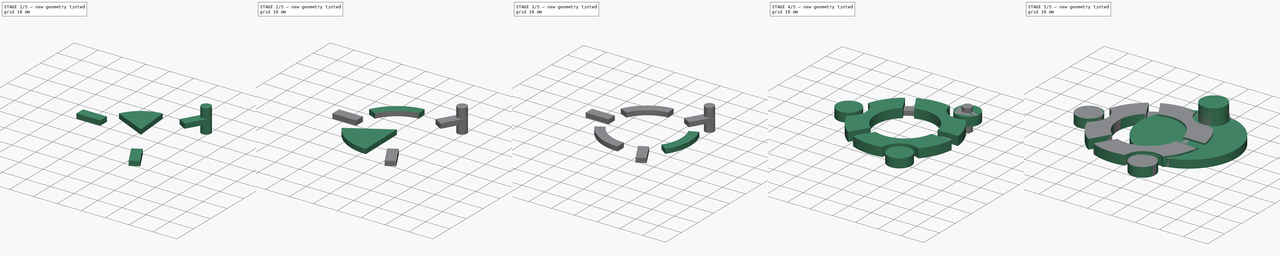
[diagram: build sequence overview — one tinted view per stage of 5, left to right]
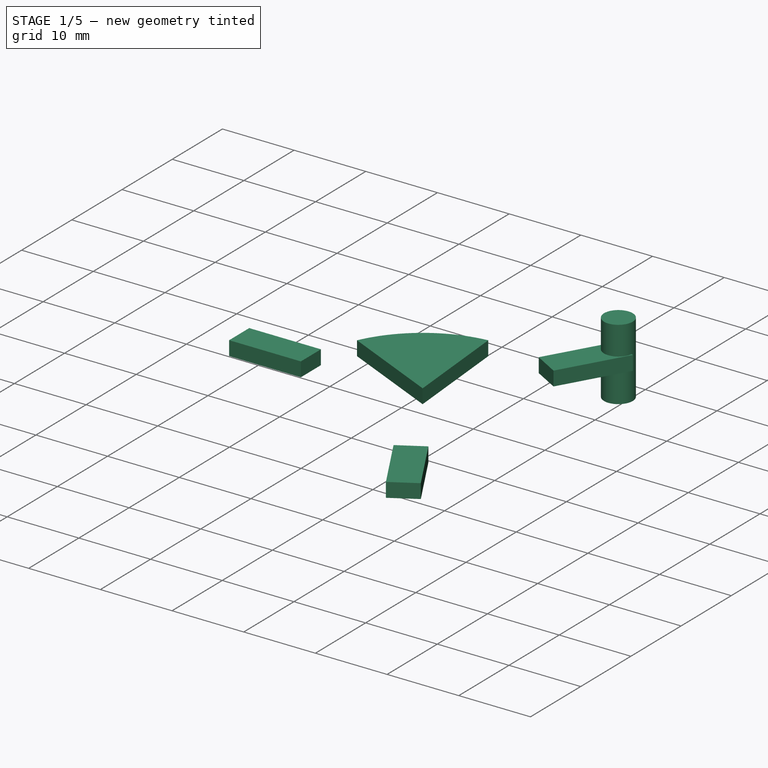
[diagram: stage 1 of 5 — iso view after this stage's code; geometry added in this stage tinted green]
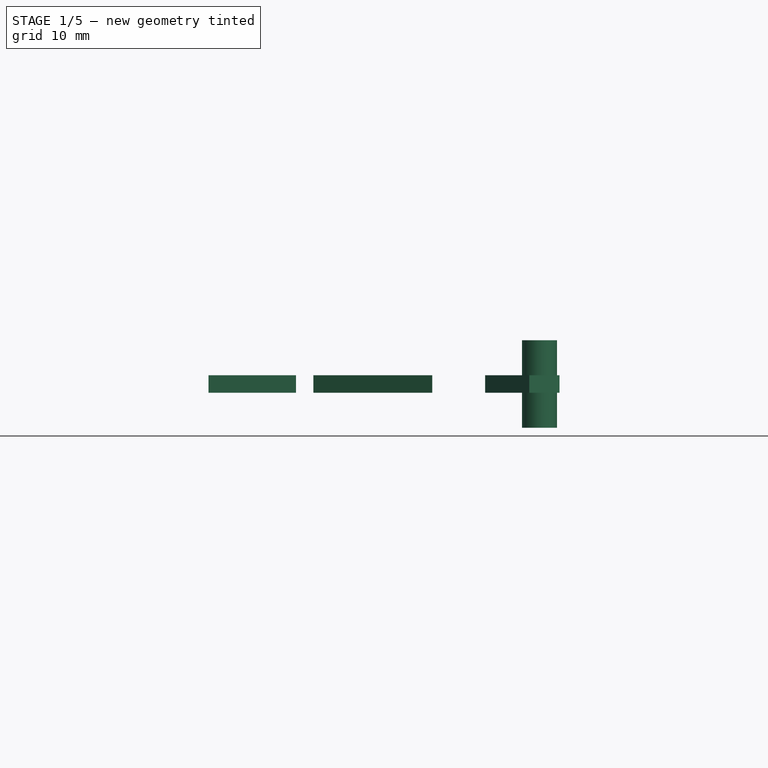
[diagram: stage 1 of 5 — front view after this stage's code; geometry added in this stage tinted green]
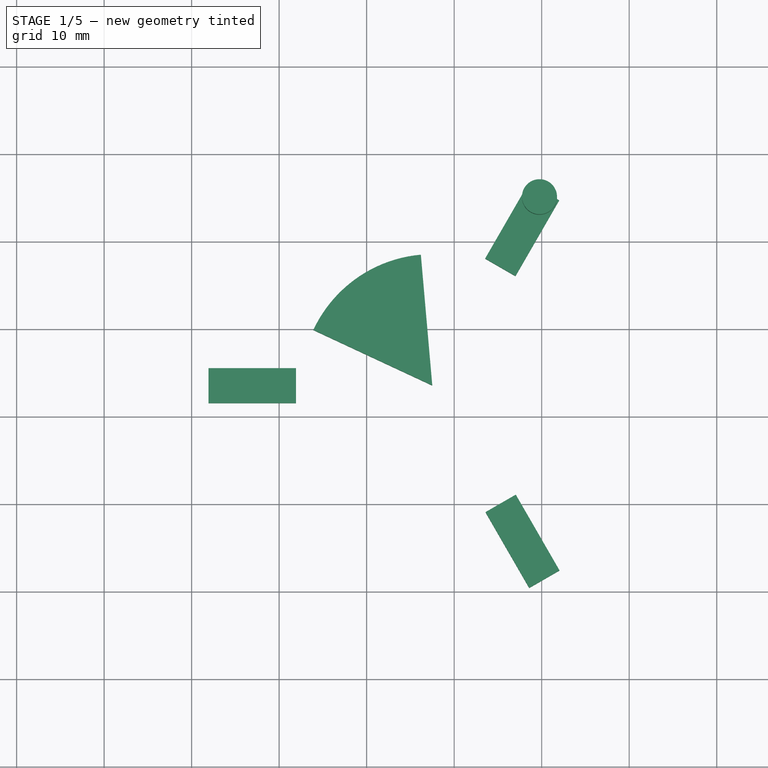
[diagram: stage 1 of 5 — top view after this stage's code; geometry added in this stage tinted green]
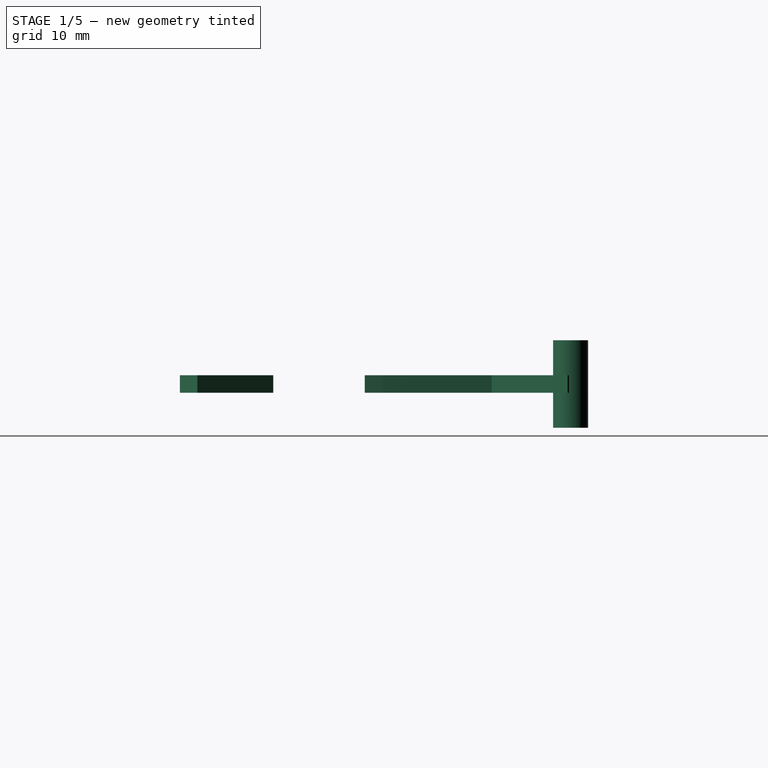
[diagram: stage 1 of 5 — right view after this stage's code; geometry added in this stage tinted green]
FCSTD DOCUMENT  (FreeCAD 0.14R3702 (Git))
Label: ubuntu
License: CreativeCommons Attribution-ShareAlike
LicenseURL: http://creativecommons.org/licenses/by-sa/4.0/
objects: Part::Cylinder×9, Part::Cut×4, Part::MultiFuse×3, Sketcher::SketchObject×2, App::DocumentObjectGroup×2, Part::Feature×2, Part::FeaturePython×2, PartDesign::Pocket×1, Part::Part2DObjectPython×1, PartDesign::Pad×1, Part::Box×1
note: 28 computed .brp shape members not serialized (recipe doc carries the construction recipe); baked Part::Feature solids carry a one-line shape summary decoded from their .brp

FEATURE [Part::Cylinder] Cylinder007  label="Cilindro006"
  Angle = 60
  Height = 2
  Placement = pos=(-12.5,-6.5,0) rot=(0,0,1;1.65806rad)
  Radius = 15
FEATURE [Part::Box] Box  label="Cubo"
  Height = 2
  Length = 10
  Placement = pos=(-3,6,0) rot=(0,0,1;1.0472rad)
  Width = 4
FEATURE [Part::FeaturePython] Array001  # Draft array (typed FeaturePython)
  Angle = 360
  ArrayType = 1
  Axis = (0,0,1)
  Base = -> Box
  Center = (-12.5,-6.5,0)
  IntervalX = (1,0,0)
  IntervalY = (0,1,0)
  IntervalZ = (0,0,1)
  NumberPolar = 3
  NumberX = 2
  NumberY = 2
  NumberZ = 1
FEATURE [Part::Cylinder] Cylinder008  label="Cilindro007"
  Angle = 360
  Height = 10
  Placement = pos=(-0.25,15,-4) rot=(0,0,1;0rad)
  Radius = 2
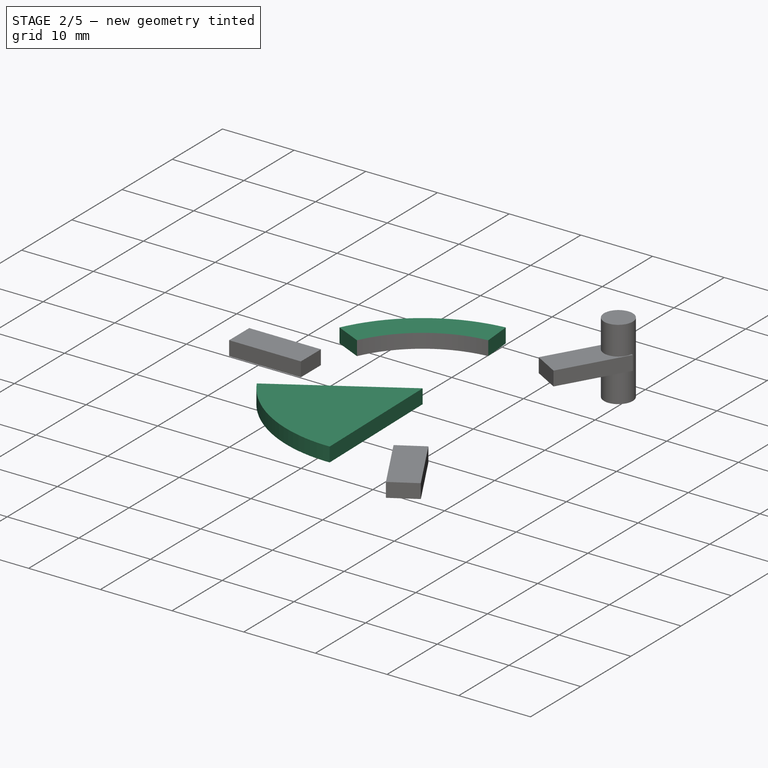
[diagram: stage 2 of 5 — iso view after this stage's code; geometry added in this stage tinted green]
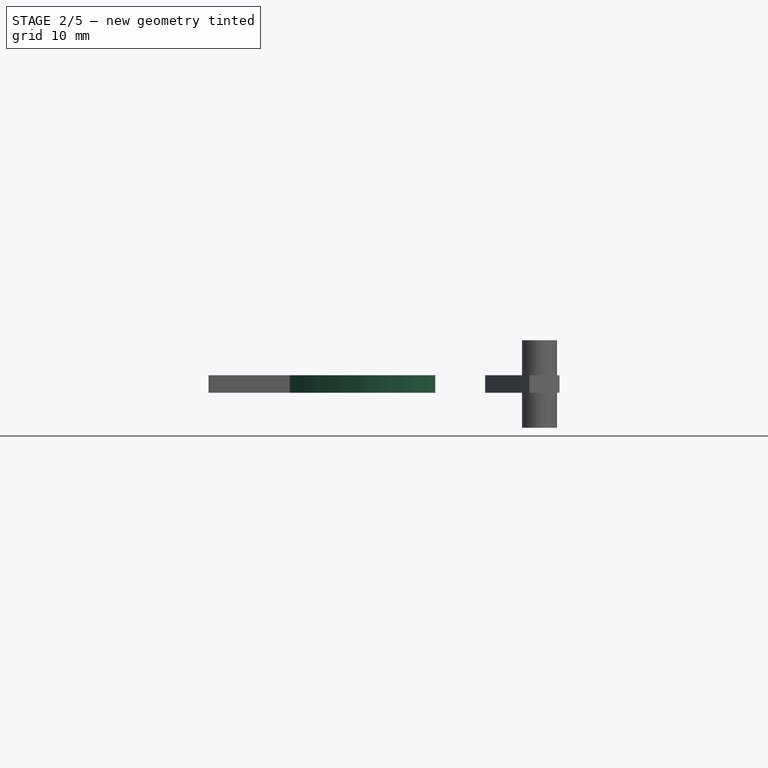
[diagram: stage 2 of 5 — front view after this stage's code; geometry added in this stage tinted green]
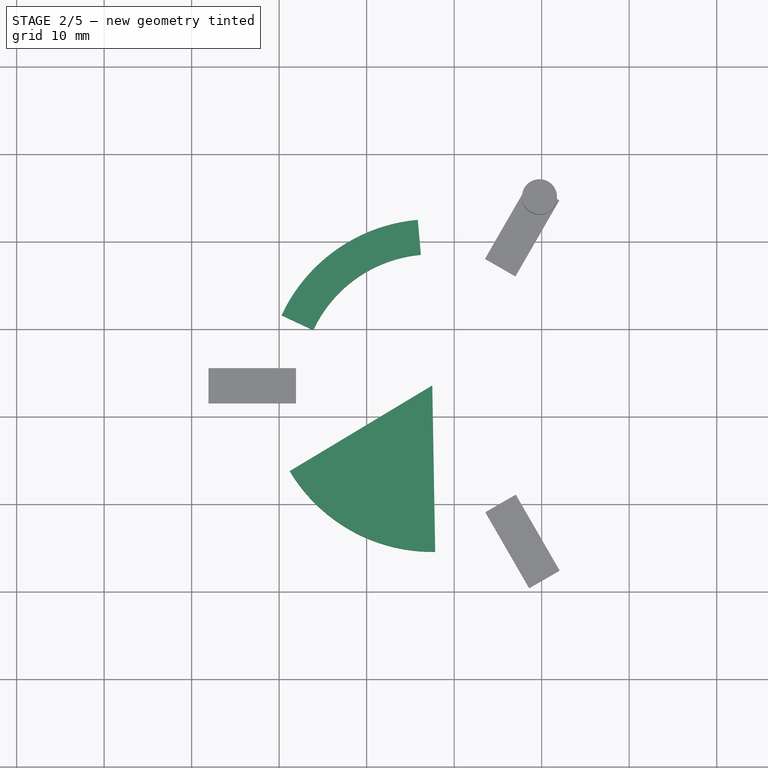
[diagram: stage 2 of 5 — top view after this stage's code; geometry added in this stage tinted green]
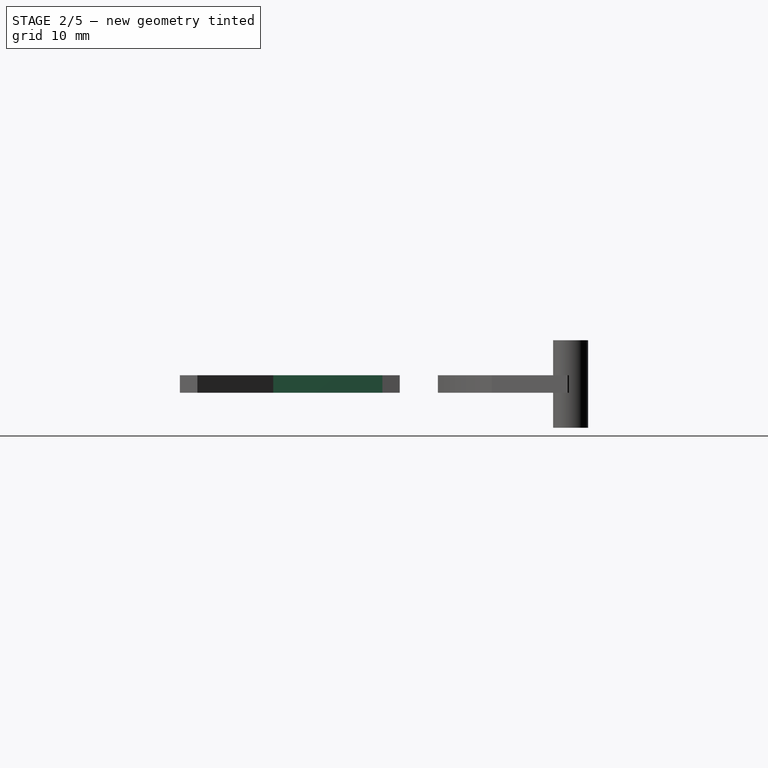
[diagram: stage 2 of 5 — right view after this stage's code; geometry added in this stage tinted green]
FEATURE [Part::Cylinder] Cylinder004  label="Cilindro003"
  Angle = 60
  Height = 2
  Placement = pos=(-12.5,-6.5,0) rot=(0,0,1;3.68264rad)
  Radius = 19
FEATURE [Part::Cylinder] Cylinder005  label="Cilindro004"
  Angle = 60
  Height = 2
  Placement = pos=(-12.5,-6.5,0) rot=(0,0,1;3.68264rad)
  Radius = 15
FEATURE [Part::Cylinder] Cylinder006  label="Cilindro005"
  Angle = 60
  Height = 2
  Placement = pos=(-12.5,-6.5,0) rot=(0,0,1;1.65806rad)
  Radius = 19
FEATURE [Part::Cut] Cut003
  Base = -> Cylinder006
  Tool = -> Cylinder007
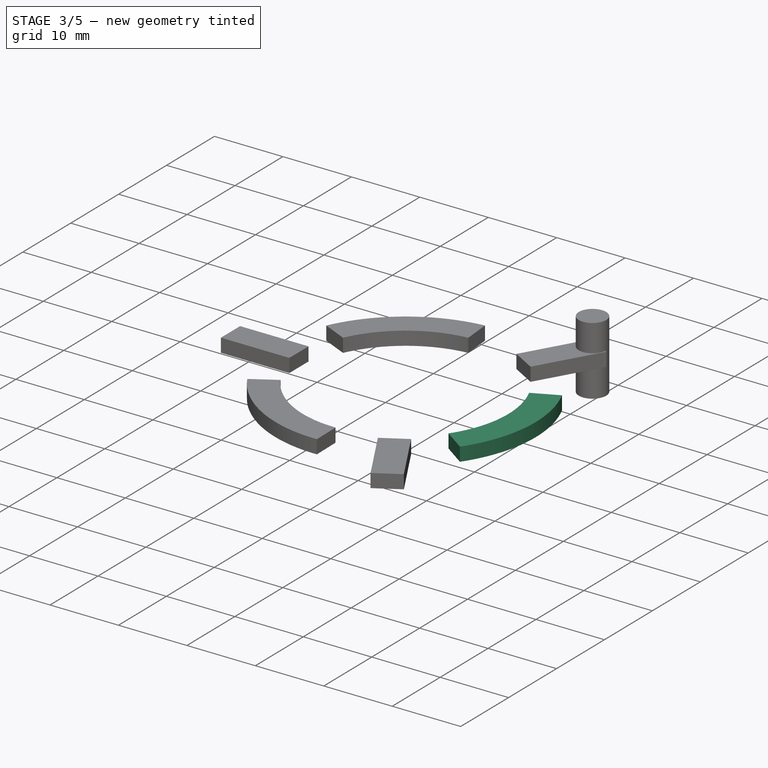
[diagram: stage 3 of 5 — iso view after this stage's code; geometry added in this stage tinted green]
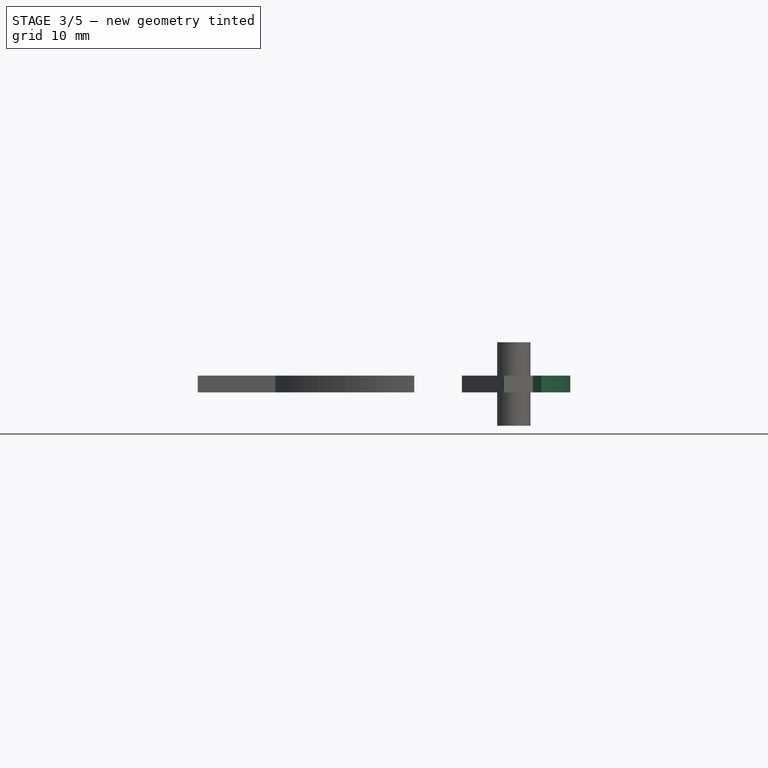
[diagram: stage 3 of 5 — front view after this stage's code; geometry added in this stage tinted green]
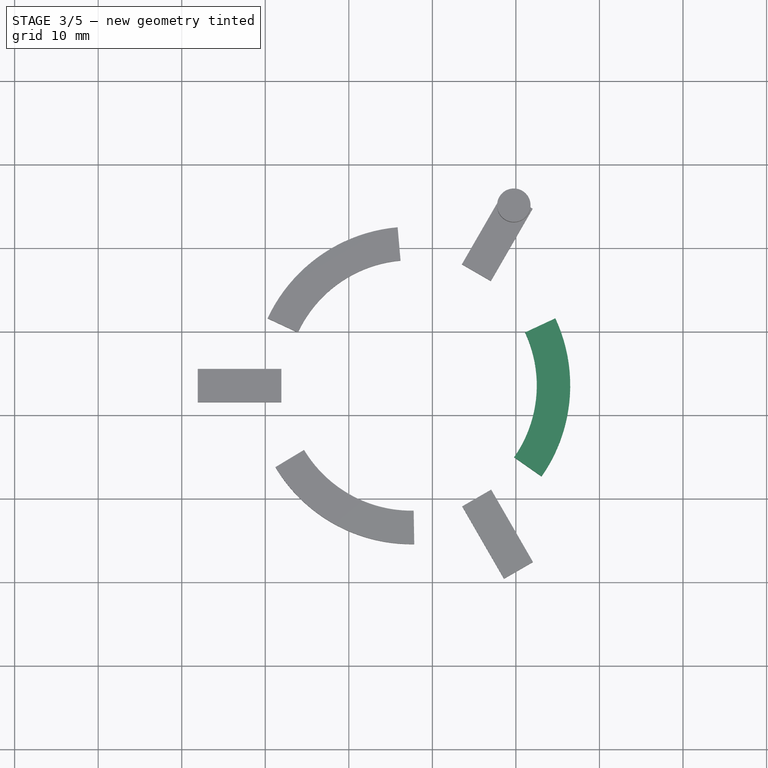
[diagram: stage 3 of 5 — top view after this stage's code; geometry added in this stage tinted green]
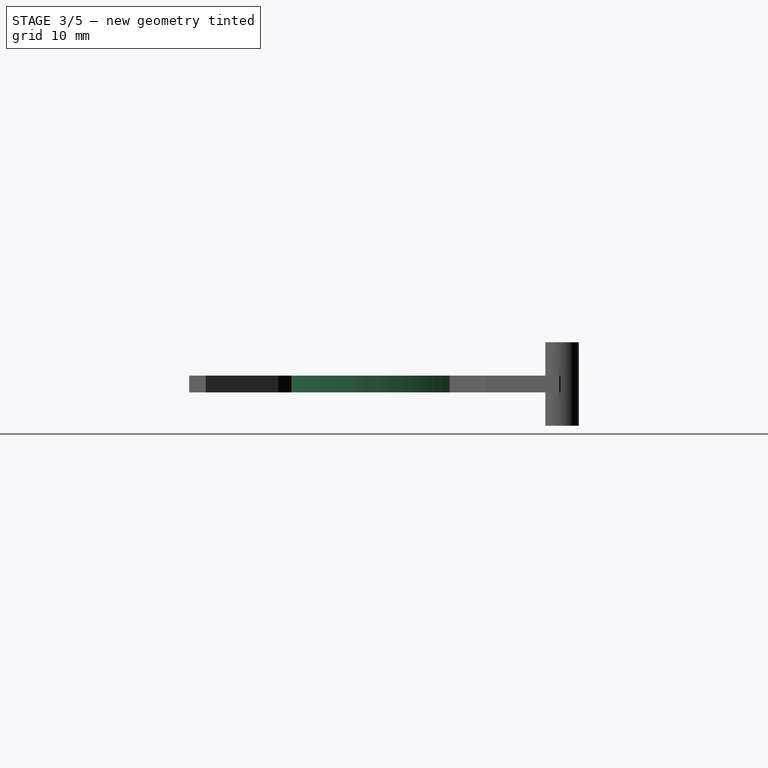
[diagram: stage 3 of 5 — right view after this stage's code; geometry added in this stage tinted green]
FEATURE [Part::Cylinder] Cylinder002  label="Cilindro001"
  Angle = 60
  Height = 2
  Placement = pos=(-12.5,-6.5,0) rot=(0,0,-1;0.610865rad)
  Radius = 19
FEATURE [Part::Cylinder] Cylinder003  label="Cilindro002"
  Angle = 60
  Height = 2
  Placement = pos=(-12.5,-6.5,0) rot=(0,0,-1;0.610865rad)
  Radius = 15
FEATURE [Part::Cut] Cut001
  Base = -> Cylinder002
  Tool = -> Cylinder003
FEATURE [Part::Cut] Cut002
  Base = -> Cylinder004
  Tool = -> Cylinder005
FEATURE [Part::MultiFuse] Fusion
  Shapes = -> [Cut001,Cut003,Cut002]
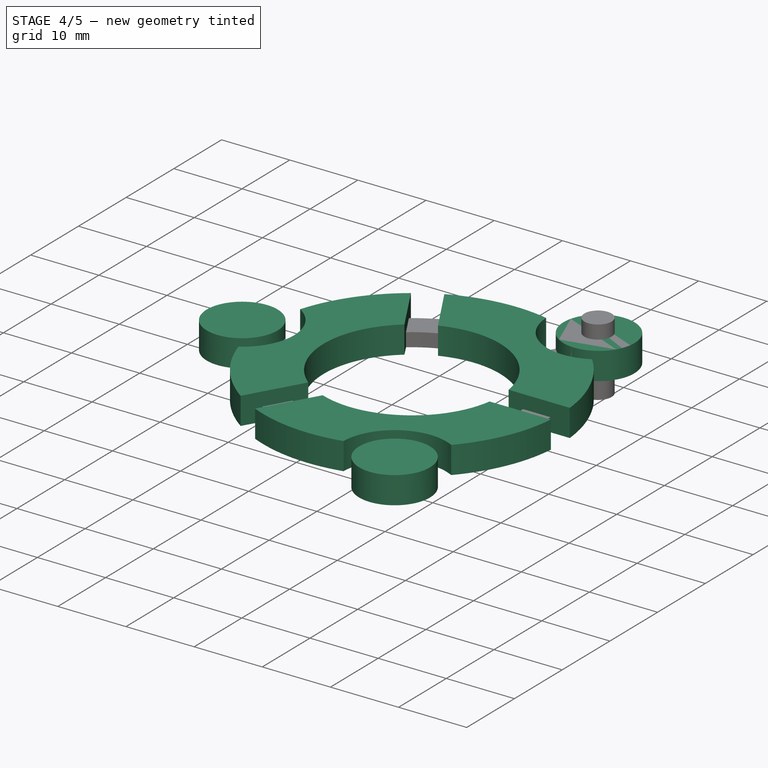
[diagram: stage 4 of 5 — iso view after this stage's code; geometry added in this stage tinted green]
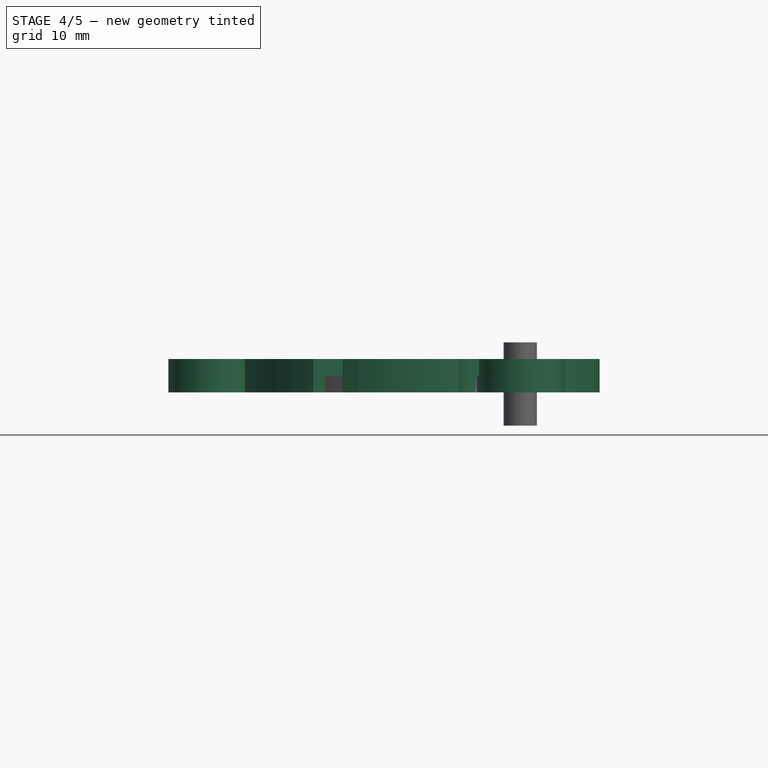
[diagram: stage 4 of 5 — front view after this stage's code; geometry added in this stage tinted green]
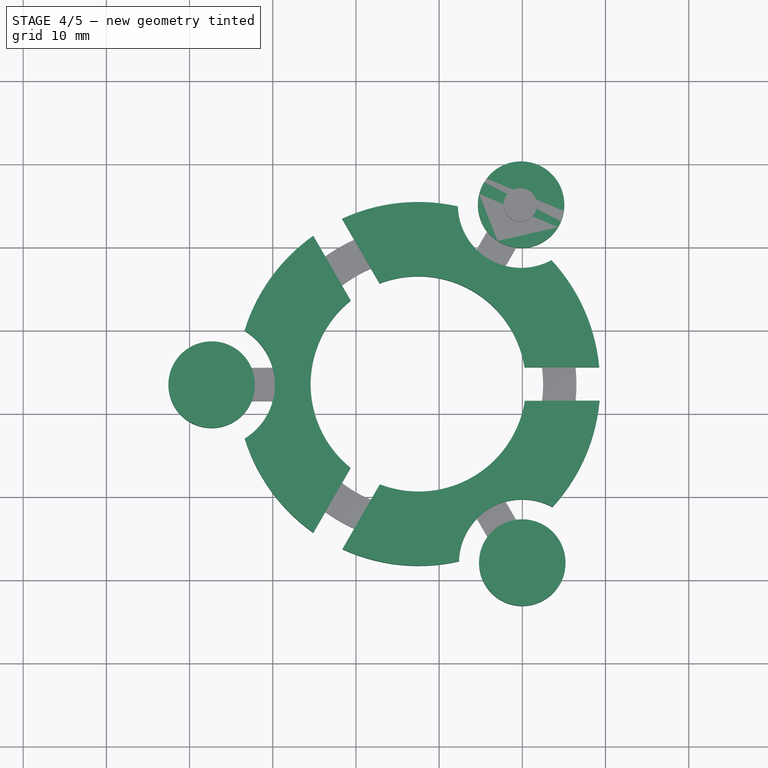
[diagram: stage 4 of 5 — top view after this stage's code; geometry added in this stage tinted green]
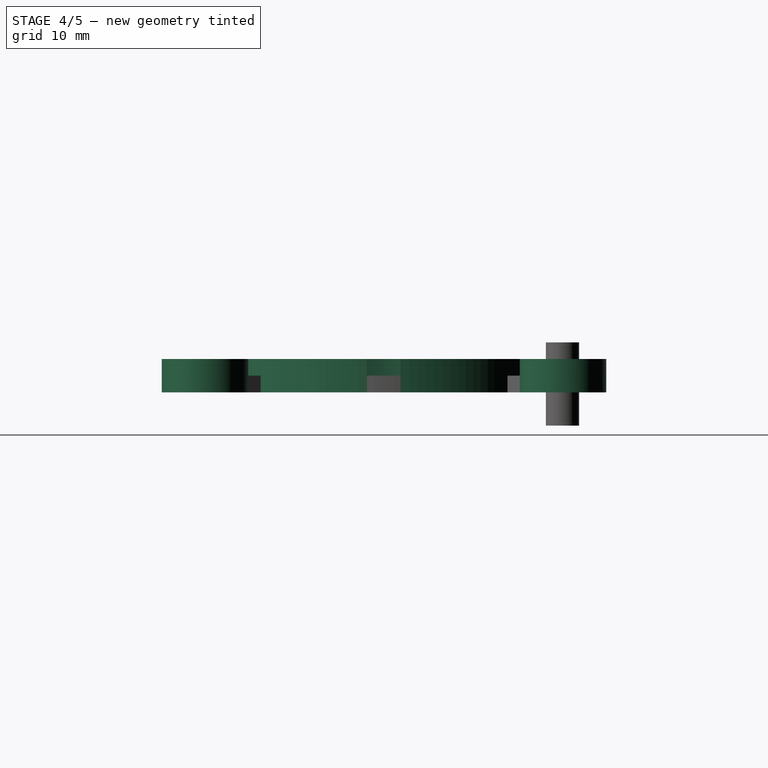
[diagram: stage 4 of 5 — right view after this stage's code; geometry added in this stage tinted green]
FEATURE [Sketcher::SketchObject] Sketch001
  sketch-geometry (7):
    g0: ArcOfCircle CenterX=-12.5136 CenterY=-6.47407 CenterZ=0 NormalX=0 NormalY=0 NormalZ=1 Radius=12.9346 StartAngle=0.154958 EndAngle=1.93757
    g1: LineSegment StartX=0.265943 StartY=-4.47777 StartZ=0 EndX=9.24446 EndY=-4.47777 EndZ=0
    g2: Circle CenterX=-0.149011 CenterY=15.0554 CenterZ=0 NormalX=0 NormalY=0 NormalZ=1 Radius=5.19831
    g3: ArcOfCircle CenterX=-0.149011 CenterY=15.0554 CenterZ=0 NormalX=0 NormalY=0 NormalZ=1 Radius=7.60405 StartAngle=3.16863 EndAngle=5.21352
    g4: ArcOfCircle CenterX=-12.5136 CenterY=-6.47407 CenterZ=0 NormalX=0 NormalY=0 NormalZ=1 Radius=21.8495 StartAngle=1.35102 EndAngle=2.00252
    g5: LineSegment StartX=-21.6562 StartY=13.3707 StartZ=0 EndX=-17.152 EndY=5.60021 EndZ=0
    g6: ArcOfCircle CenterX=-12.5136 CenterY=-6.47407 CenterZ=0 NormalX=0 NormalY=0 NormalZ=1 Radius=21.8495 StartAngle=0.0914938 EndAngle=0.747937
  constraints (14):
    c: Horizontal(g1)
    c: PointOnObject(g0,g1)
    c: Coincident(g3,g2)
    c: PointOnObject(g3,g4)
    c: PointOnObject(g3,g4)
    c: Equal(g4,g6)
    c: PointOnObject(g6,g1)
    c: Coincident(g4,g6)
    c: Coincident(g5,g4)
    c: Coincident(g0,g5)
    c: Coincident(g0,g1)
    c: Coincident(g1,g6)
    c: Coincident(g3,g4)
    c: Coincident(g3,g6)
FEATURE [PartDesign::Pad] Pad
  Length = 4
  Length2 = 10
  Sketch = -> Sketch001
  Type = 0
FEATURE [Part::FeaturePython] Array  # Draft array (typed FeaturePython)
  Angle = 360
  ArrayType = 1
  Axis = (0,0,1)
  Base = -> Pad
  Center = (-12.5,-6.5,0)
  IntervalX = (0,0,0)
  IntervalY = (0,1,0)
  IntervalZ = (0,0,1)
  NumberPolar = 3
  NumberX = 0
  NumberY = 0
  NumberZ = 0
FEATURE [Part::MultiFuse] Fusion001
  Shapes = -> [Array,Fusion]
FEATURE [Part::MultiFuse] Fusion002
  Shapes = -> [Fusion001,Array001]
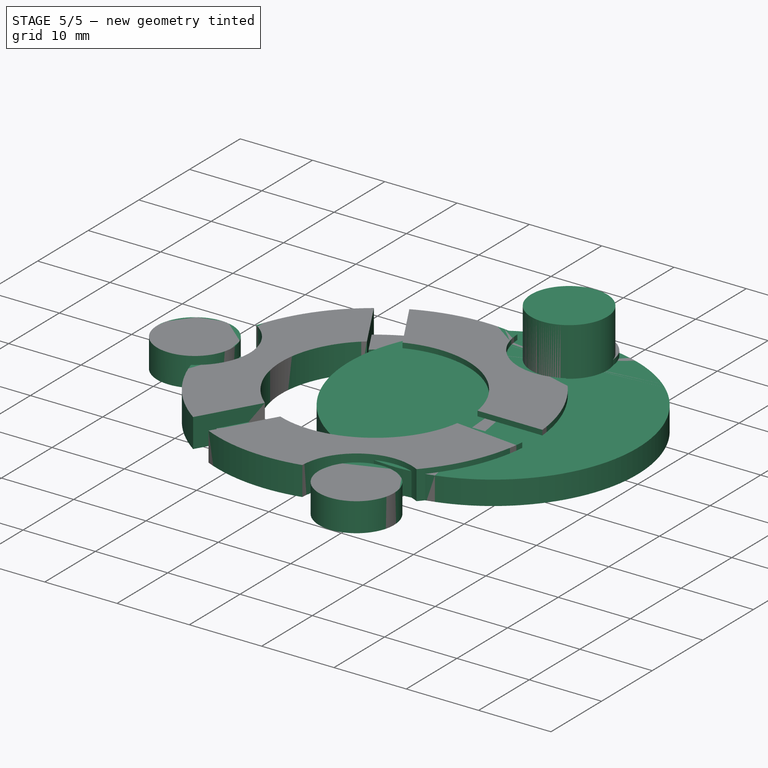
[diagram: stage 5 of 5 — iso view after this stage's code; geometry added in this stage tinted green]
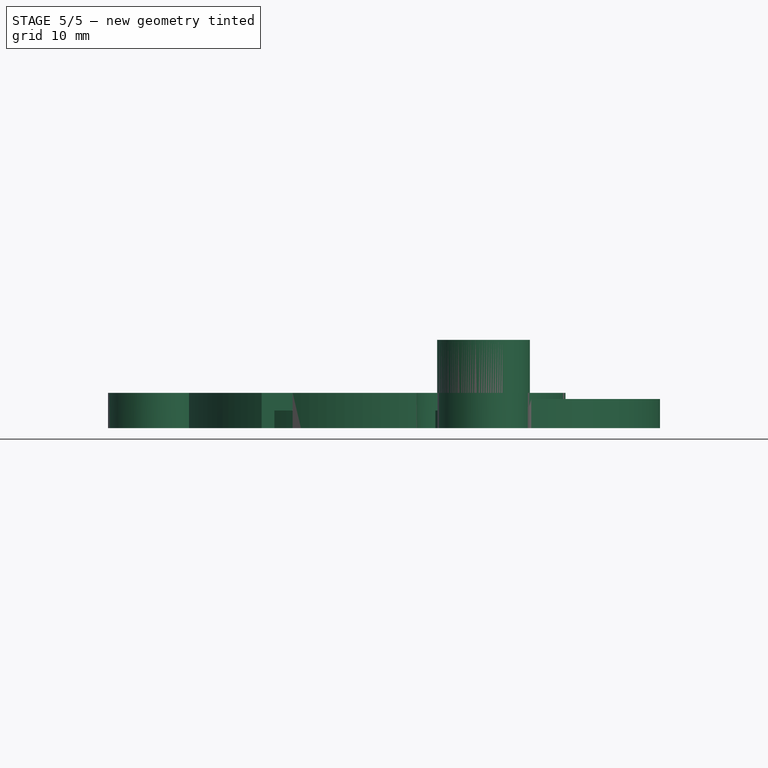
[diagram: stage 5 of 5 — front view after this stage's code; geometry added in this stage tinted green]
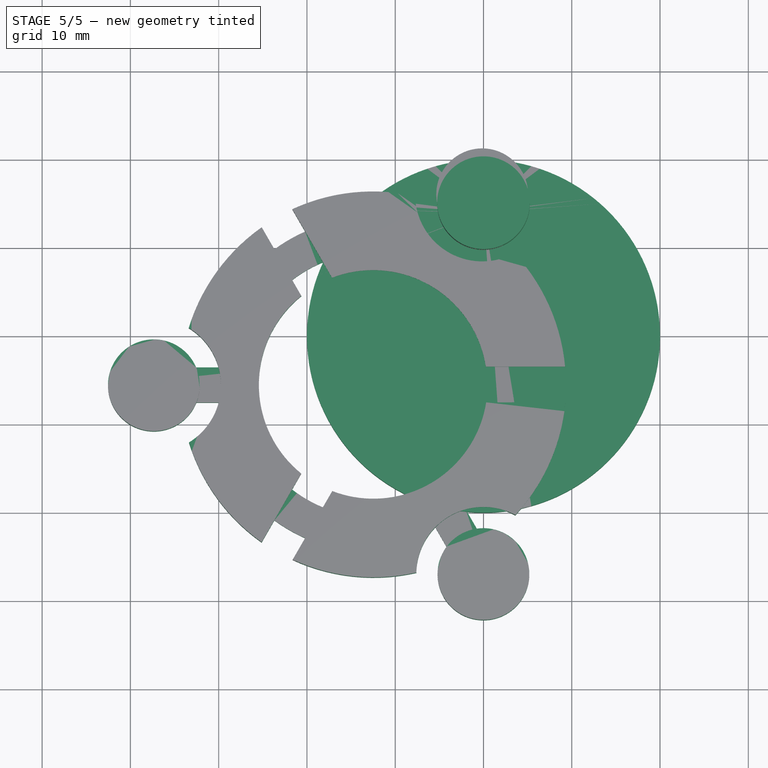
[diagram: stage 5 of 5 — top view after this stage's code; geometry added in this stage tinted green]
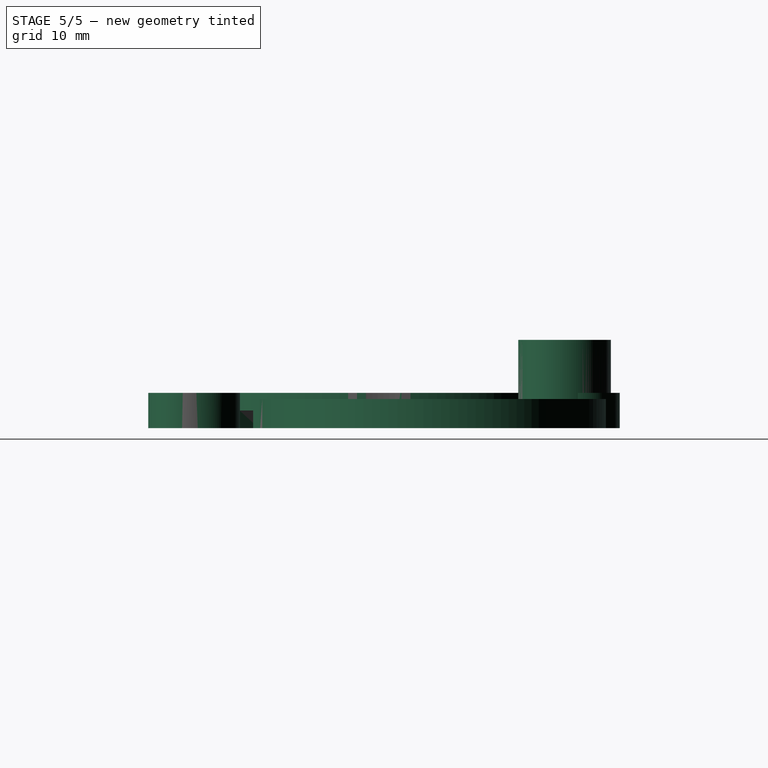
[diagram: stage 5 of 5 — right view after this stage's code; geometry added in this stage tinted green]
FEATURE [Part::Cylinder] Cylinder  label="casino-chip-main body"
  Angle = 360
  Height = 3.3
  Radius = 20
FEATURE [Sketcher::SketchObject] Sketch  label="hole-sketch"
  Placement = pos=(0,0,3.3) rot=(0,0,1;0rad)
  Support = -> Cylinder [Face2]
  sketch-geometry (1):
    g0: Circle CenterX=0 CenterY=15.1 CenterZ=0 NormalX=0 NormalY=0 NormalZ=1 Radius=1.5
  constraints (3):
    c: Radius(g0) = 1.5
    c: PointOnObject(g0,g-2)
    c: DistanceY(g-1,g0) = 15.1
FEATURE [PartDesign::Pocket] Pocket  label="casino-chip-key-chain"
  Length = 5
  Sketch = -> Sketch
  Type = 1
FEATURE [App::DocumentObjectGroup] Group001  label="Casino-chip-src"
  Group = -> [Cylinder,Pocket]
FEATURE [Part::Feature] Sweep  label="key-ring-model-1"
  Placement = pos=(-1.2,24.7546,1.6391) rot=(0.333333,0.881918,0.333333;1.69612rad)
  shape: bbox 3.31 x 27.02 x 26.33 mm, 4 faces (baked)
FEATURE [Part::Feature] Cut  label="key-model-1"
  Placement = pos=(-5.46976,31.0266,0) rot=(0,0,1;0.517888rad)
  shape: bbox 49.82 x 36.6 x 2.3 mm, 44 faces (baked)
FEATURE [App::DocumentObjectGroup] Group  label="Assembly"
  Group = -> [Sweep,Cut]
FEATURE [Part::Part2DObjectPython] Rectangle  # Draft 2D object (typed FeaturePython)
  ChamferSize = 0
  FilletRadius = 0
  Height = 64
  Length = 80
  MakeFace = true
  Placement = pos=(-55,-38,0) rot=(0,0,1;0rad)
FEATURE [Part::Cylinder] Cylinder001  label="Cilindro"
  Angle = 360
  Height = 10
  Placement = pos=(0,15,0) rot=(0,0,1;0rad)
  Radius = 5.25
FEATURE [Part::Cut] Cut004
  Base = -> Fusion002
  Placement = pos=(0,1,0) rot=(0,0,1;0rad)
  Tool = -> Cylinder008
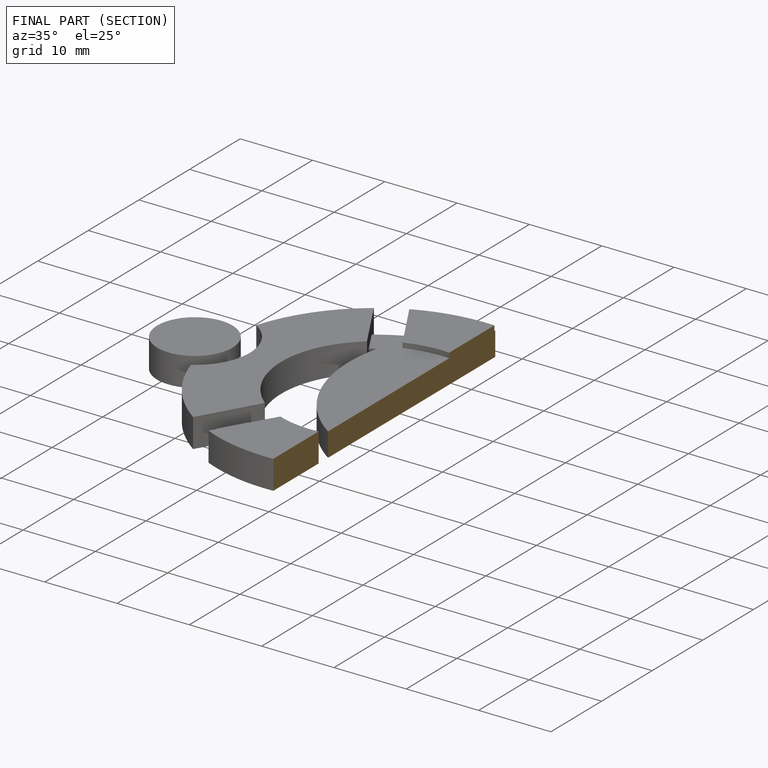
[diagram: finished part — half-section view (interior)]
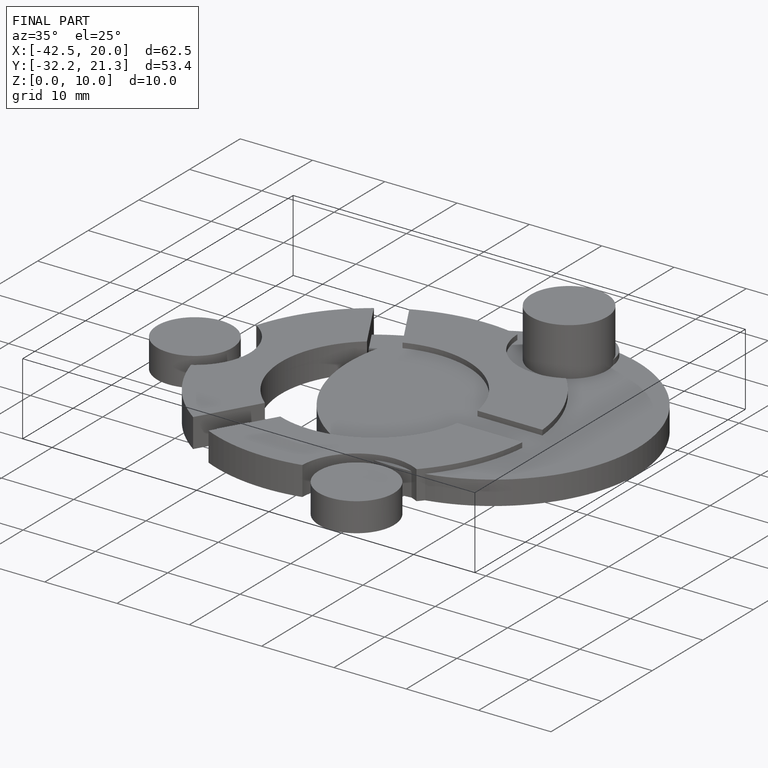
[diagram: finished part — iso view with bounding-box wireframe]
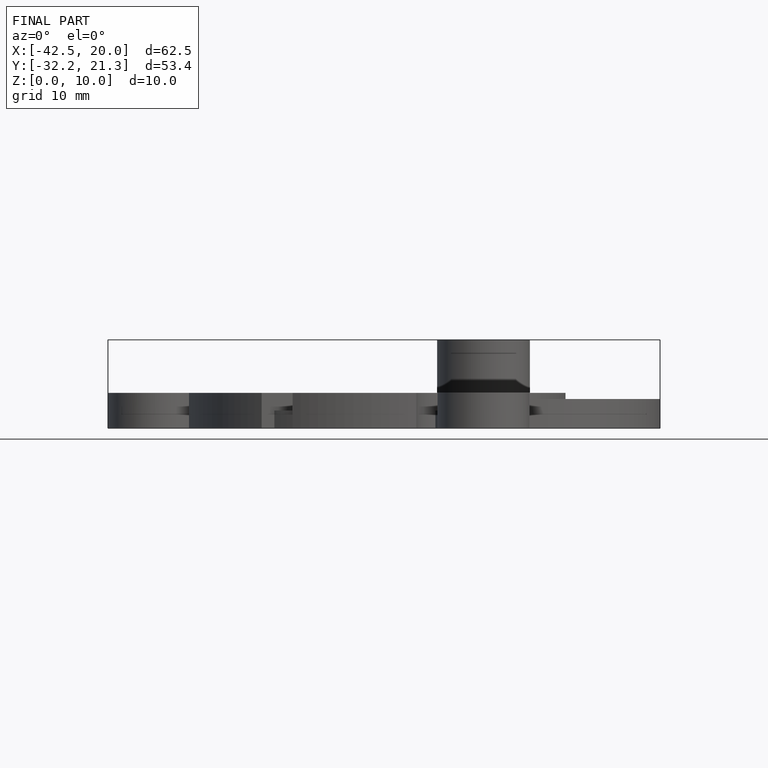
[diagram: finished part — front view with bounding-box wireframe]
